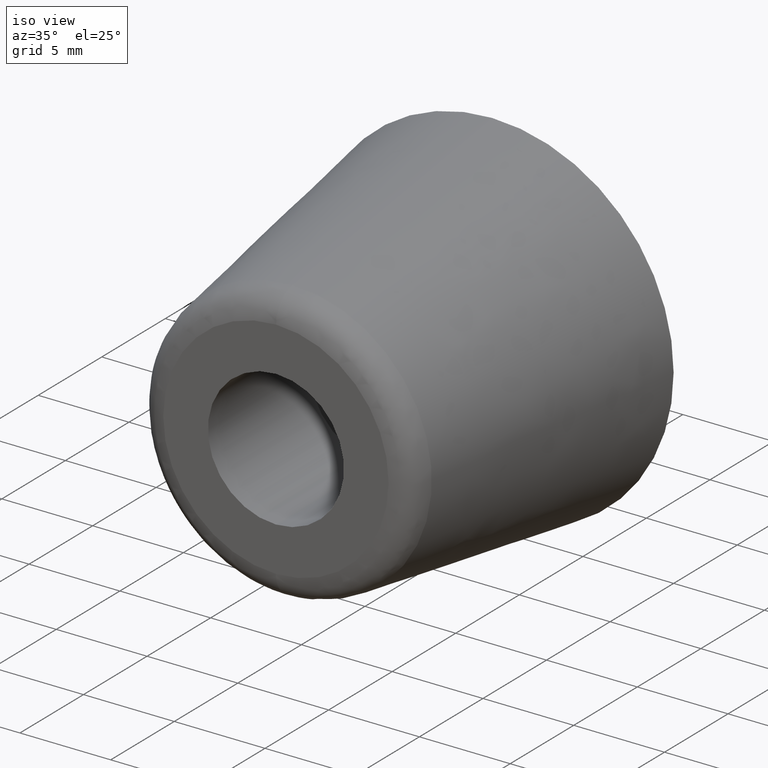
[diagram: clean part render]
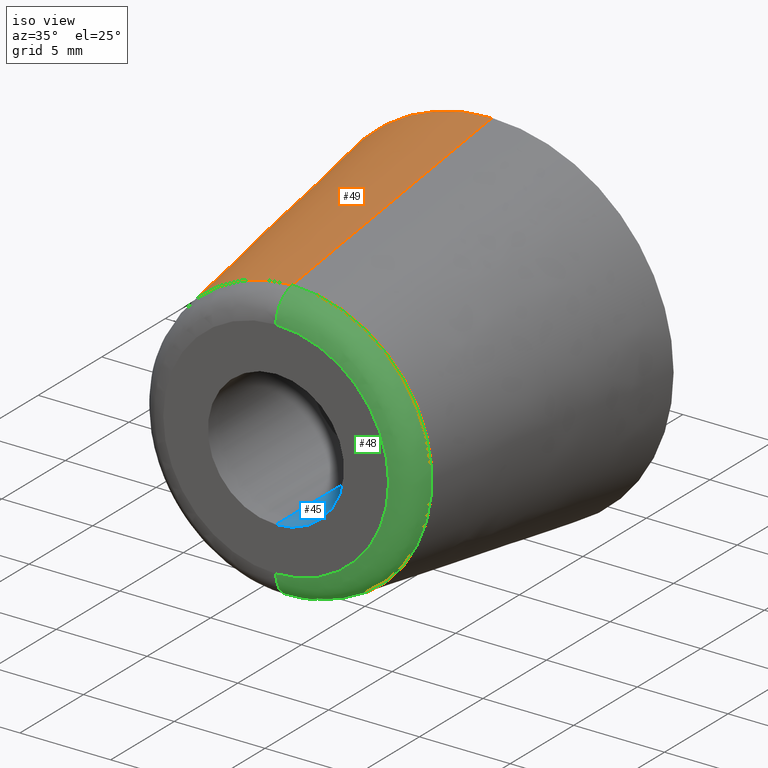
[diagram: same view with three faces highlighted in distinct colors, each labeled with its STEP entity id]
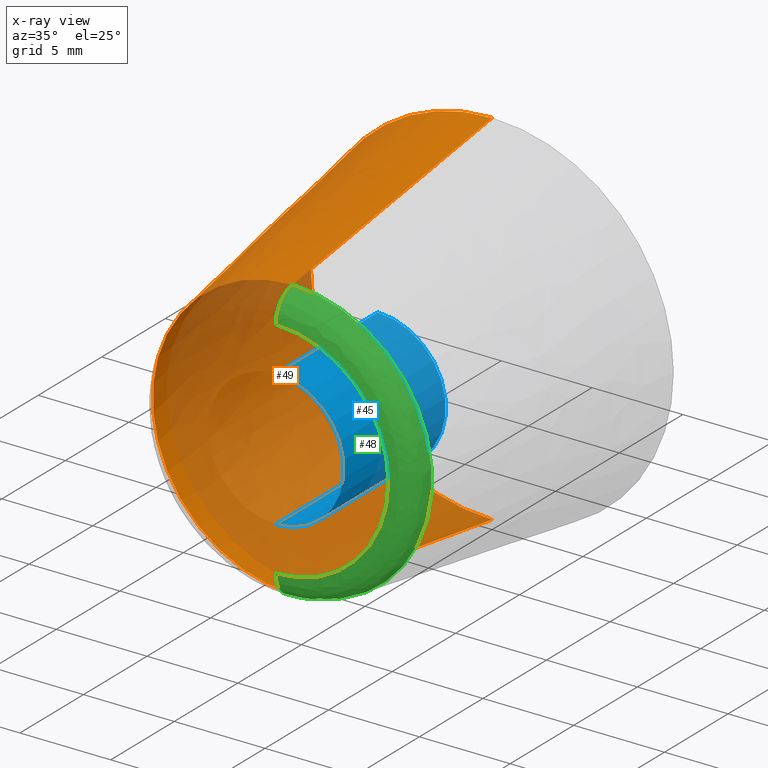
[diagram: x-ray of the same camera — body ghosted, the three highlighted faces saturated]
A machine part, iso view with three faces highlighted in distinct colors.
The next image is the same camera in x-ray (body ghosted, the three faces saturated) — at least one of them is partly hidden behind the body in this view.
Their STEP definitions:

[orange] entity #49 — the highlighted face is a freeform B-spline surface patch.
#49=ADVANCED_FACE('',(#145),#144,.T.);
#144=( BOUNDED_SURFACE() B_SPLINE_SURFACE( 2,1,((#254,#255),(#256,#257),(#258,#259),(#260,#261),(#262,#263)), .UNSPECIFIED.,.F.,.F.,.F.) B_SPLINE_SURFACE_WITH_KNOTS((3,2,3),(2,2),(0.00000000000E+00,5.00000000000E-01,1.00000000000E+00),(0.00000000000E+00,1.00000000000E+00), .UNSPECIFIED. ) GEOMETRIC_REPRESENTATION_ITEM() RATIONAL_B_SPLINE_SURFACE(((1.00000000000E+00,1.00000000000E+00),(7.07106781187E-01,7.07106781187E-01),(1.00000000000E+00,1.00000000000E+00),(7.07106781187E-01,7.07106781187E-01),(1.00000000000E+00,1.00000000000E+00))) REPRESENTATION_ITEM('') SURFACE() );
#145=FACE_OUTER_BOUND('',#264,.T.);
#254=CARTESIAN_POINT('',(8.77500312962E-15,-1.57182409857E+01,-7.68849397268E+00));
#255=CARTESIAN_POINT('',(8.20884743811E-15,0.00000000000E+00,-1.00000000000E+01));
#256=CARTESIAN_POINT('',(-7.68849397268E+00,-1.57182409857E+01,-7.68849397268E+00));
#257=CARTESIAN_POINT('',(-1.00000000000E+01,0.00000000000E+00,-1.00000000000E+01));
#258=CARTESIAN_POINT('',(-7.68849397268E+00,-1.57182409857E+01,1.41235343009E-15));
#259=CARTESIAN_POINT('',(-1.00000000000E+01,0.00000000000E+00,1.83697019872E-15));
#260=CARTESIAN_POINT('',(-7.68849397268E+00,-1.57182409857E+01,7.68849397268E+00));
#261=CARTESIAN_POINT('',(-1.00000000000E+01,0.00000000000E+00,1.00000000000E+01));
#262=CARTESIAN_POINT('',(1.15997099898E-14,-1.57182409857E+01,7.68849397268E+00));
#263=CARTESIAN_POINT('',(1.18827878355E-14,0.00000000000E+00,1.00000000000E+01));
#264=EDGE_LOOP('',(#312,#313,#314,#315));
#312=ORIENTED_EDGE('',*,*,#328,.T.);
#313=ORIENTED_EDGE('',*,*,#340,.F.);
#314=ORIENTED_EDGE('',*,*,#337,.F.);
#315=ORIENTED_EDGE('',*,*,#341,.T.);
#328=EDGE_CURVE('',#398,#399,#400,.T.);
#337=EDGE_CURVE('',#450,#457,#458,.T.);
#340=EDGE_CURVE('',#457,#399,#476,.T.);
#341=EDGE_CURVE('',#450,#398,#482,.T.);
#398=VERTEX_POINT('',#528);
#399=VERTEX_POINT('',#529);
#400=CIRCLE('',#533,1.00000000000E+01);
#450=VERTEX_POINT('',#556);
#457=VERTEX_POINT('',#560);
#458=CIRCLE('',#564,7.68849397268E+00);
#476=(BOUNDED_CURVE() B_SPLINE_CURVE(1,(#574,#575),.UNSPECIFIED.,.F.,.F.) B_SPLINE_CURVE_WITH_KNOTS((2,2),(0.00000000000E+00,1.00000000000E+00),.UNSPECIFIED.) CURVE() GEOMETRIC_REPRESENTATION_ITEM() RATIONAL_B_SPLINE_CURVE((1.00000000000E+00,1.00000000000E+00)) REPRESENTATION_ITEM('') );
#482=(BOUNDED_CURVE() B_SPLINE_CURVE(1,(#576,#577),.UNSPECIFIED.,.F.,.F.) B_SPLINE_CURVE_WITH_KNOTS((2,2),(0.00000000000E+00,1.00000000000E+00),.UNSPECIFIED.) CURVE() GEOMETRIC_REPRESENTATION_ITEM() RATIONAL_B_SPLINE_CURVE((7.50000000000E-01,7.50000000000E-01)) REPRESENTATION_ITEM('') );
#528=CARTESIAN_POINT('',(1.06581410364E-14,0.00000000000E+00,1.00000000000E+01));
#529=CARTESIAN_POINT('',(1.06581410364E-14,0.00000000000E+00,-1.00000000000E+01));
#530=CARTESIAN_POINT('',(1.06581410364E-14,0.00000000000E+00,0.00000000000E+00));
#531=DIRECTION('',(0.00000000000E+00,-1.00000000000E+00,-0.00000000000E+00));
#532=DIRECTION('',(-1.22460635382E-16,0.00000000000E+00,-1.00000000000E+00));
#533=AXIS2_PLACEMENT_3D('',#530,#531,#532);
#556=CARTESIAN_POINT('',(1.15463194561E-14,-1.57182409857E+01,7.68849397268E+00));
#560=CARTESIAN_POINT('',(1.06581410364E-14,-1.57182409857E+01,-7.68849397268E+00));
#561=CARTESIAN_POINT('',(1.06581410364E-14,-1.57182409857E+01,0.00000000000E+00));
#562=DIRECTION('',(0.00000000000E+00,-1.00000000000E+00,-0.00000000000E+00));
#563=DIRECTION('',(-1.22460635382E-16,0.00000000000E+00,-1.00000000000E+00));
#564=AXIS2_PLACEMENT_3D('',#561,#562,#563);
#574=CARTESIAN_POINT('',(8.77506532235E-15,-1.57182409857E+01,-7.68849397268E+00));
#575=CARTESIAN_POINT('',(8.20892832876E-15,0.00000000000E+00,-1.00000000000E+01));
#576=CARTESIAN_POINT('',(1.24344978758E-14,-1.57182409857E+01,7.68849397268E+00));
#577=CARTESIAN_POINT('',(1.36187357687E-14,0.00000000000E+00,1.00000000000E+01));

[blue] entity #45 — the highlighted cylindrical surface (partial cylindrical patch) has radius 3.75 mm, axis along (-0, 1, 0).
#45=ADVANCED_FACE('',(#105),#104,.F.);
#104=CYLINDRICAL_SURFACE('',#195,3.75000000000E+00);
#105=FACE_OUTER_BOUND('',#196,.T.);
#192=CARTESIAN_POINT('',(1.06581410364E-14,0.00000000000E+00,0.00000000000E+00));
#193=DIRECTION('',(-0.00000000000E+00,1.00000000000E+00,0.00000000000E+00));
#194=DIRECTION('',(-0.00000000000E+00,-0.00000000000E+00,1.00000000000E+00));
#195=AXIS2_PLACEMENT_3D('',#192,#193,#194);
#196=EDGE_LOOP('',(#296,#297,#298,#299));
#296=ORIENTED_EDGE('',*,*,#327,.T.);
#297=ORIENTED_EDGE('',*,*,#334,.T.);
#298=ORIENTED_EDGE('',*,*,#320,.F.);
#299=ORIENTED_EDGE('',*,*,#335,.F.);
#320=EDGE_CURVE('',#342,#343,#344,.T.);
#327=EDGE_CURVE('',#385,#384,#392,.T.);
#334=EDGE_CURVE('',#384,#343,#438,.T.);
#335=EDGE_CURVE('',#385,#342,#444,.T.);
#342=VERTEX_POINT('',#488);
#343=VERTEX_POINT('',#489);
#344=CIRCLE('',#493,3.75000000000E+00);
#384=VERTEX_POINT('',#518);
#385=VERTEX_POINT('',#519);
#392=CIRCLE('',#527,3.75000000000E+00);
#438=(BOUNDED_CURVE() B_SPLINE_CURVE(1,(#552,#553),.UNSPECIFIED.,.F.,.F.) B_SPLINE_CURVE_WITH_KNOTS((2,2),(8.33333366442E-02,9.16666667899E-01),.UNSPECIFIED.) CURVE() GEOMETRIC_REPRESENTATION_ITEM() RATIONAL_B_SPLINE_CURVE((1.00000000000E+00,1.00000000000E+00)) REPRESENTATION_ITEM('') );
#444=(BOUNDED_CURVE() B_SPLINE_CURVE(1,(#554,#555),.UNSPECIFIED.,.F.,.F.) B_SPLINE_CURVE_WITH_KNOTS((2,2),(8.33333333333E-02,9.16666666667E-01),.UNSPECIFIED.) CURVE() GEOMETRIC_REPRESENTATION_ITEM() RATIONAL_B_SPLINE_CURVE((7.50000000000E-01,7.50000000000E-01)) REPRESENTATION_ITEM('') );
#488=CARTESIAN_POINT('',(1.06581410364E-14,-9.00000000000E+00,-3.75000000000E+00));
#489=CARTESIAN_POINT('',(1.11022302463E-14,-9.00000000000E+00,3.75000000000E+00));
#490=CARTESIAN_POINT('',(1.06581410364E-14,-9.00000000000E+00,0.00000000000E+00));
#491=DIRECTION('',(0.00000000000E+00,-1.00000000000E+00,-0.00000000000E+00));
#492=DIRECTION('',(-1.22460635382E-16,0.00000000000E+00,-1.00000000000E+00));
#493=AXIS2_PLACEMENT_3D('',#490,#491,#492);
#518=CARTESIAN_POINT('',(1.11022302463E-14,-1.70000000000E+01,3.75000000000E+00));
#519=CARTESIAN_POINT('',(1.06581410364E-14,-1.70000000000E+01,-3.75000000000E+00));
#524=CARTESIAN_POINT('',(1.06581410364E-14,-1.70000000000E+01,0.00000000000E+00));
#525=DIRECTION('',(0.00000000000E+00,-1.00000000000E+00,-0.00000000000E+00));
#526=DIRECTION('',(-1.22460635382E-16,0.00000000000E+00,-1.00000000000E+00));
#527=AXIS2_PLACEMENT_3D('',#524,#525,#526);
#552=CARTESIAN_POINT('',(1.06581410364E-14,-1.69999999682E+01,3.75000000000E+00));
#553=CARTESIAN_POINT('',(1.06581410364E-14,-8.99999998817E+00,3.75000000000E+00));
#554=CARTESIAN_POINT('',(1.06581410364E-14,-1.70000000000E+01,-3.75000000000E+00));
#555=CARTESIAN_POINT('',(1.06581410364E-14,-9.00000000000E+00,-3.75000000000E+00));

[green] entity #48 — the highlighted face is a freeform B-spline surface patch.
#48=ADVANCED_FACE('',(#135),#134,.T.);
#134=( BOUNDED_SURFACE() B_SPLINE_SURFACE( 2,2,((#228,#229,#230,#231,#232),(#233,#234,#235,#236,#237),(#238,#239,#240,#241,#242),(#243,#244,#245,#246,#247),(#248,#249,#250,#251,#252)), .UNSPECIFIED.,.F.,.F.,.F.) B_SPLINE_SURFACE_WITH_KNOTS((3,2,3),(3,2,3),(0.00000000000E+00,5.00000000000E-01,1.00000000000E+00),(0.00000000000E+00,5.00000000000E-01,1.00000000000E+00), .UNSPECIFIED. ) GEOMETRIC_REPRESENTATION_ITEM() RATIONAL_B_SPLINE_SURFACE(((1.00000000000E+00,7.56800498974E-01,1.00000000000E+00,7.56800498974E-01,1.00000000000E+00),(7.07106781187E-01,5.35138764830E-01,7.07106781187E-01,5.35138764830E-01,7.07106781187E-01),(1.00000000000E+00,7.56800498974E-01,1.00000000000E+00,7.56800498974E-01,1.00000000000E+00),(7.07106781187E-01,5.35138764830E-01,7.07106781187E-01,5.35138764830E-01,7.07106781187E-01),(1.00000000000E+00,7.56800498974E-01,1.00000000000E+00,7.56800498974E-01,1.00000000000E+00))) REPRESENTATION_ITEM('') SURFACE() );
#135=FACE_OUTER_BOUND('',#253,.T.);
#228=CARTESIAN_POINT('',(1.04083097595E-14,-1.57182409857E+01,-7.68849397268E+00));
#229=CARTESIAN_POINT('',(1.04083105219E-14,-1.70000000000E+01,-7.50000000000E+00));
#230=CARTESIAN_POINT('',(1.04083157617E-14,-1.70000000000E+01,-6.20445526964E+00));
#231=CARTESIAN_POINT('',(1.04083210016E-14,-1.70000000000E+01,-4.90891053928E+00));
#232=CARTESIAN_POINT('',(1.04083217640E-14,-1.57182409857E+01,-4.72041656659E+00));
#233=CARTESIAN_POINT('',(7.68849397268E+00,-1.57182409857E+01,-7.68849397268E+00));
#234=CARTESIAN_POINT('',(7.50000000000E+00,-1.70000000000E+01,-7.50000000000E+00));
#235=CARTESIAN_POINT('',(6.20445526964E+00,-1.70000000000E+01,-6.20445526964E+00));
#236=CARTESIAN_POINT('',(4.90891053928E+00,-1.70000000000E+01,-4.90891053928E+00));
#237=CARTESIAN_POINT('',(4.72041656659E+00,-1.57182409857E+01,-4.72041656659E+00));
#238=CARTESIAN_POINT('',(7.68849397268E+00,-1.57182409857E+01,-4.70815573059E-16));
#239=CARTESIAN_POINT('',(7.50000000000E+00,-1.70000000000E+01,-4.59272883674E-16));
#240=CARTESIAN_POINT('',(6.20445526964E+00,-1.70000000000E+01,-3.79938408442E-16));
#241=CARTESIAN_POINT('',(4.90891053928E+00,-1.70000000000E+01,-3.00603933209E-16));
#242=CARTESIAN_POINT('',(4.72041656659E+00,-1.57182409857E+01,-2.89061243824E-16));
#243=CARTESIAN_POINT('',(7.68849397268E+00,-1.57182409857E+01,7.68849397268E+00));
#244=CARTESIAN_POINT('',(7.50000000000E+00,-1.70000000000E+01,7.50000000000E+00));
#245=CARTESIAN_POINT('',(6.20445526964E+00,-1.70000000000E+01,6.20445526964E+00));
#246=CARTESIAN_POINT('',(4.90891053928E+00,-1.70000000000E+01,4.90891053928E+00));
#247=CARTESIAN_POINT('',(4.72041656659E+00,-1.57182409857E+01,4.72041656659E+00));
#248=CARTESIAN_POINT('',(1.13499409056E-14,-1.57182409857E+01,7.68849397268E+00));
#249=CARTESIAN_POINT('',(1.13268562892E-14,-1.70000000000E+01,7.50000000000E+00));
#250=CARTESIAN_POINT('',(1.11681925786E-14,-1.70000000000E+01,6.20445526964E+00));
#251=CARTESIAN_POINT('',(1.10095288680E-14,-1.70000000000E+01,4.90891053928E+00));
#252=CARTESIAN_POINT('',(1.09864442516E-14,-1.57182409857E+01,4.72041656659E+00));
#253=EDGE_LOOP('',(#308,#309,#310,#311));
#308=ORIENTED_EDGE('',*,*,#339,.T.);
#309=ORIENTED_EDGE('',*,*,#336,.T.);
#310=ORIENTED_EDGE('',*,*,#324,.F.);
#311=ORIENTED_EDGE('',*,*,#338,.F.);
#324=EDGE_CURVE('',#370,#371,#372,.T.);
#336=EDGE_CURVE('',#450,#371,#451,.T.);
#338=EDGE_CURVE('',#457,#370,#464,.T.);
#339=EDGE_CURVE('',#457,#450,#470,.T.);
#370=VERTEX_POINT('',#508);
#371=VERTEX_POINT('',#509);
#372=CIRCLE('',#513,6.20445526964E+00);
#450=VERTEX_POINT('',#556);
#451=(BOUNDED_CURVE() B_SPLINE_CURVE(2,(#557,#558,#559),.UNSPECIFIED.,.F.,.F.) B_SPLINE_CURVE_WITH_KNOTS((3,3),(0.00000000000E+00,5.00000000000E-01),.UNSPECIFIED.) CURVE() GEOMETRIC_REPRESENTATION_ITEM() RATIONAL_B_SPLINE_CURVE((1.00000000000E+00,7.56800498974E-01,1.00000000000E+00)) REPRESENTATION_ITEM('') );
#457=VERTEX_POINT('',#560);
#464=(BOUNDED_CURVE() B_SPLINE_CURVE(3,(#565,#566,#567,#568,#569),.UNSPECIFIED.,.F.,.F.) B_SPLINE_CURVE_WITH_KNOTS((4,1,4),(0.00000000000E+00,2.50000002718E-01,5.00000004832E-01),.UNSPECIFIED.) CURVE() GEOMETRIC_REPRESENTATION_ITEM() RATIONAL_B_SPLINE_CURVE((1.00000000000E+00,1.00000000000E+00,1.00000000000E+00,1.00000000000E+00,1.00000000000E+00)) REPRESENTATION_ITEM('') );
#470=CIRCLE('',#573,7.68849397268E+00);
#508=CARTESIAN_POINT('',(1.06581410364E-14,-1.70000000000E+01,-6.20445526964E+00));
#509=CARTESIAN_POINT('',(1.03620815632E-14,-1.70000000000E+01,6.20445526964E+00));
#510=CARTESIAN_POINT('',(1.06581410364E-14,-1.70000000000E+01,0.00000000000E+00));
#511=DIRECTION('',(0.00000000000E+00,-1.00000000000E+00,-0.00000000000E+00));
#512=DIRECTION('',(-1.22460635382E-16,0.00000000000E+00,-1.00000000000E+00));
#513=AXIS2_PLACEMENT_3D('',#510,#511,#512);
#556=CARTESIAN_POINT('',(1.15463194561E-14,-1.57182409857E+01,7.68849397268E+00));
#557=CARTESIAN_POINT('',(9.46680299883E-15,-1.57182409857E+01,7.68849397268E+00));
#558=CARTESIAN_POINT('',(9.48988609049E-15,-1.70000000000E+01,7.50000000000E+00));
#559=CARTESIAN_POINT('',(9.64853932134E-15,-1.70000000000E+01,6.20445526964E+00));
#560=CARTESIAN_POINT('',(1.06581410364E-14,-1.57182409857E+01,-7.68849397268E+00));
#565=CARTESIAN_POINT('',(1.18423789293E-14,-1.57182409857E+01,-7.68849397268E+00));
#566=CARTESIAN_POINT('',(1.17061268447E-14,-1.60682932839E+01,-7.63928169377E+00));
#567=CARTESIAN_POINT('',(1.14892437149E-14,-1.67351339217E+01,-7.27123608428E+00));
#568=CARTESIAN_POINT('',(1.14904042907E-14,-1.70022418925E+01,-6.55794277972E+00));
#569=CARTESIAN_POINT('',(1.15463194560E-14,-1.70000000000E+01,-6.20445525069E+00));
#570=CARTESIAN_POINT('',(1.06581410364E-14,-1.57182409857E+01,0.00000000000E+00));
#571=DIRECTION('',(0.00000000000E+00,-1.00000000000E+00,-0.00000000000E+00));
#572=DIRECTION('',(-1.22460635382E-16,0.00000000000E+00,-1.00000000000E+00));
#573=AXIS2_PLACEMENT_3D('',#570,#571,#572);